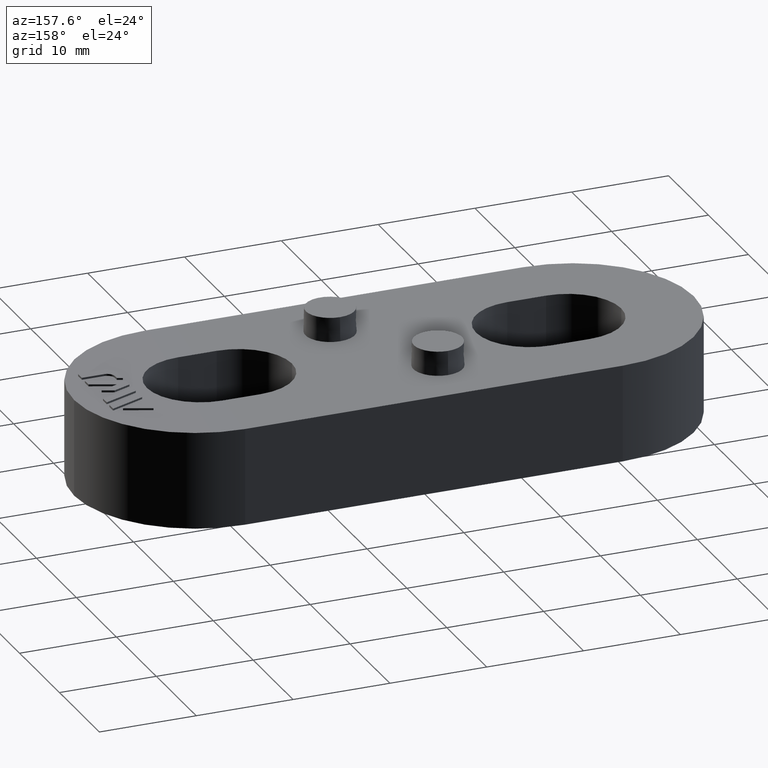
[diagram: clean part render]
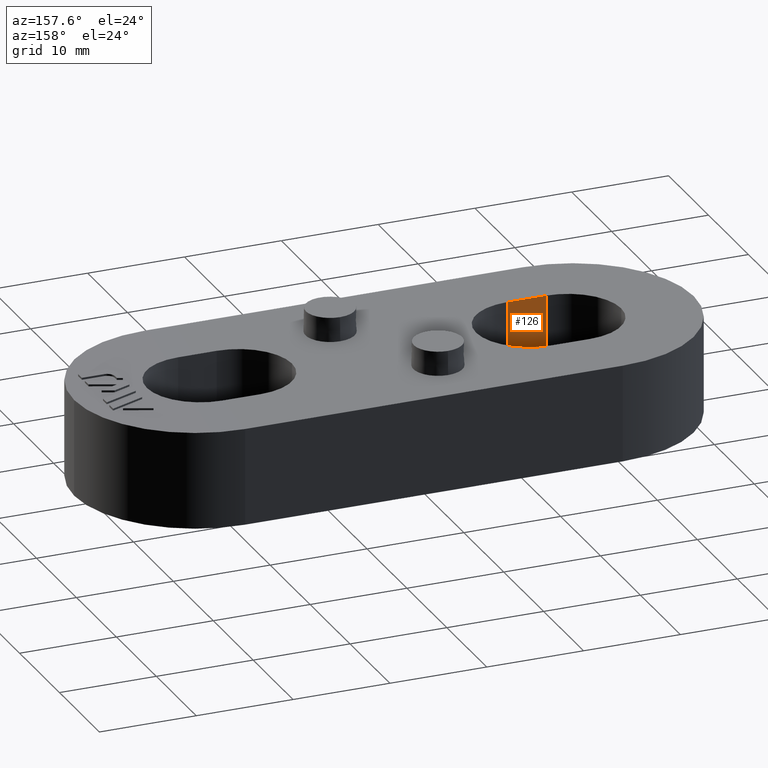
[diagram: same view with one face highlighted and labeled with its STEP entity id]
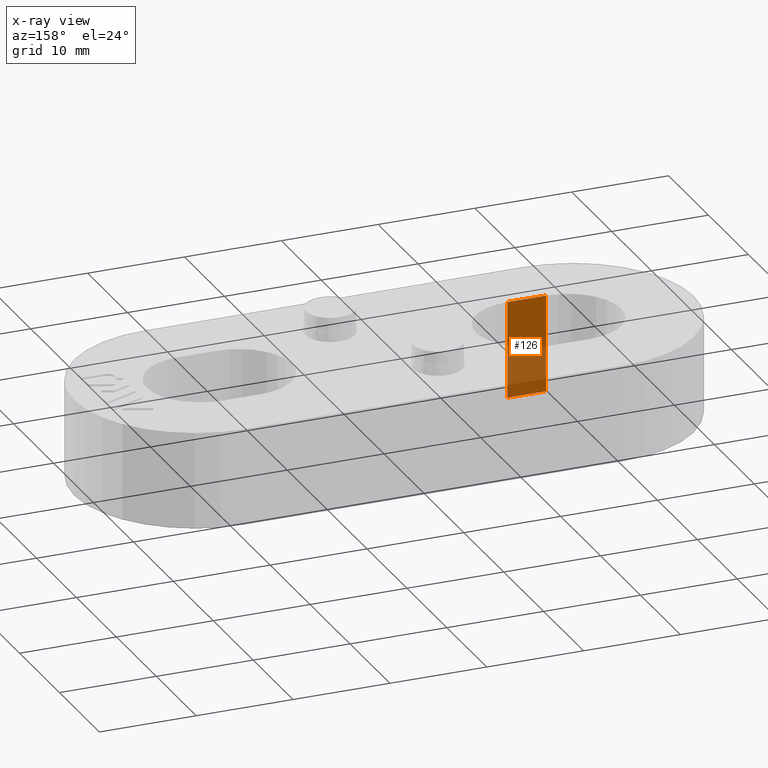
[diagram: x-ray of the same camera — body ghosted, the highlighted face saturated]
A machine part, auxiliary view. The second image highlights one B-rep face of the part: STEP entity #126.
The next image is the same camera in x-ray: the body ghosted, the highlighted face saturated — about 50% of this face is hidden behind the body in this view.
In plain terms, the highlighted planar face has unit normal (0, -1, 0).
Its self-contained STEP definition (entity closure, byte-faithful):
#126 = ADVANCED_FACE( '', ( #379 ), #380, .F. );
#379 = FACE_OUTER_BOUND( '', #795, .T. );
#380 = PLANE( '', #796 );
#795 = EDGE_LOOP( '', ( #1485, #1486, #1487, #1488 ) );
#796 = AXIS2_PLACEMENT_3D( '', #1489, #1490, #1491 );
#1485 = ORIENTED_EDGE( '', *, *, #2716, .F. );
#1486 = ORIENTED_EDGE( '', *, *, #2717, .T. );
#1487 = ORIENTED_EDGE( '', *, *, #2615, .T. );
#1488 = ORIENTED_EDGE( '', *, *, #2715, .F. );
#1489 = CARTESIAN_POINT( '', ( -19.0000000000000, -5.50000000000000, -1.00000993871160E-005 ) );
#1490 = DIRECTION( '', ( 1.15648231731787E-016, -1.00000000000000, 6.12303176911189E-017 ) );
#1491 = DIRECTION( '', ( -1.00000000000000, -1.15648231731787E-016, 7.08117796935346E-033 ) );
#2615 = EDGE_CURVE( '', #3109, #3107, #3110, .T. );
#2715 = EDGE_CURVE( '', #3270, #3107, #3272, .T. );
#2716 = EDGE_CURVE( '', #3273, #3270, #3274, .T. );
#2717 = EDGE_CURVE( '', #3273, #3109, #3275, .T. );
#3107 = VERTEX_POINT( '', #3908 );
#3109 = VERTEX_POINT( '', #3910 );
#3110 = LINE( '', #3911, #3912 );
#3270 = VERTEX_POINT( '', #4142 );
#3272 = LINE( '', #4144, #4145 );
#3273 = VERTEX_POINT( '', #4146 );
#3274 = LINE( '', #4147, #4148 );
#3275 = LINE( '', #4149, #4150 );
#3908 = CARTESIAN_POINT( '', ( -15.0000000000000, -5.49999999999999, 10.0000099999312 ) );
#3910 = CARTESIAN_POINT( '', ( -19.0000000000000, -5.49999999999999, 10.0000099999312 ) );
#3911 = CARTESIAN_POINT( '', ( -19.0000000000000, -5.49999999999999, 10.0000099999312 ) );
#3912 = VECTOR( '', #5015, 1000.00000000000 );
#4142 = CARTESIAN_POINT( '', ( -15.0000000000000, -5.50000000000000, 3.36766747301153E-016 ) );
#4144 = CARTESIAN_POINT( '', ( -15.0000000000000, -5.50000000000000, -1.00000993871160E-005 ) );
#4145 = VECTOR( '', #5173, 1000.00000000000 );
#4146 = CARTESIAN_POINT( '', ( -19.0000000000000, -5.50000000000000, 3.36766747301154E-016 ) );
#4147 = CARTESIAN_POINT( '', ( 19.5000000000000, -5.49999999999999, 3.36766747301153E-016 ) );
#4148 = VECTOR( '', #5174, 1000.00000000000 );
#4149 = CARTESIAN_POINT( '', ( -19.0000000000000, -5.50000000000000, -1.00000993871160E-005 ) );
#4150 = VECTOR( '', #5175, 1000.00000000000 );
#5015 = DIRECTION( '', ( 1.00000000000000, 1.15648231731787E-016, -7.08117796935346E-033 ) );
#5173 = DIRECTION( '', ( 0.000000000000000, 6.12303176911189E-017, 1.00000000000000 ) );
#5174 = DIRECTION( '', ( 1.00000000000000, 6.12303176911189E-017, -3.74915180455534E-033 ) );
#5175 = DIRECTION( '', ( 0.000000000000000, 6.12303176911189E-017, 1.00000000000000 ) );